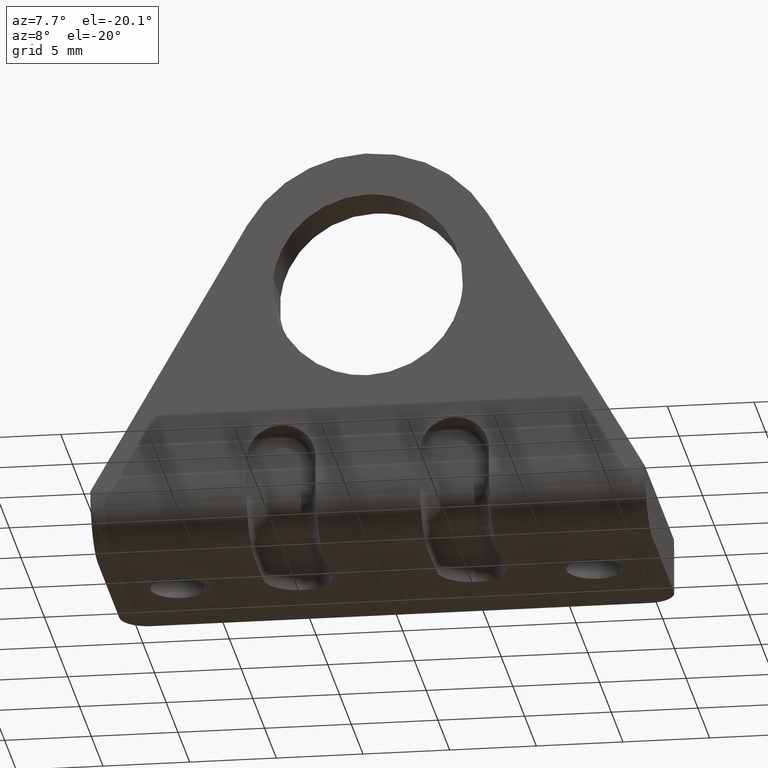
[diagram: clean part render]
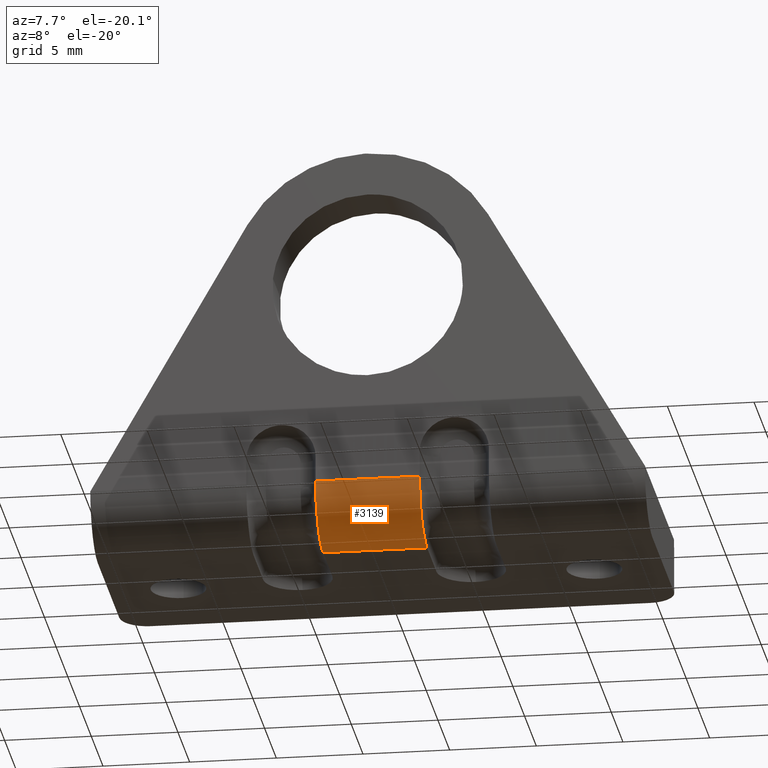
[diagram: same view with one face highlighted and labeled with its STEP entity id]
A machine part, auxiliary view. The second image highlights one B-rep face of the part: STEP entity #3139.
In plain terms, the highlighted face is a freeform B-spline surface patch.
Its self-contained STEP definition (entity closure, byte-faithful):
#969=CARTESIAN_POINT('',(-3.000000000000115,3.199999999999805,-1.154632E-014));
#970=VERTEX_POINT('',#969);
#1016=CARTESIAN_POINT('',(-3.0,0.0,3.200000000000000));
#1017=VERTEX_POINT('',#1016);
#1047=CARTESIAN_POINT('',(-3.0,0.0,3.200000000000000));
#1048=CARTESIAN_POINT('',(-3.000000000000115,-1.947227E-013,4.336809E-016));
#1049=CARTESIAN_POINT('',(-3.000000000000115,3.199999999999805,0.0));
#1057=(BOUNDED_CURVE()B_SPLINE_CURVE(2,(#1047,#1048,#1049),.UNSPECIFIED.,.F.,.U.)CURVE()GEOMETRIC_REPRESENTATION_ITEM()QUASI_UNIFORM_CURVE()RATIONAL_B_SPLINE_CURVE((1.0,0.707106781186548,1.0))REPRESENTATION_ITEM(''));
#1058=EDGE_CURVE('',#1017,#970,#1057,.T.);
#1597=CARTESIAN_POINT('',(3.0,0.0,3.200000000000000));
#1598=VERTEX_POINT('',#1597);
#1674=CARTESIAN_POINT('',(3.000000000000115,3.199999999999805,-1.154632E-014));
#1675=VERTEX_POINT('',#1674);
#1707=CARTESIAN_POINT('',(3.0,0.0,3.200000000000000));
#1708=CARTESIAN_POINT('',(3.000000000000115,-1.947227E-013,4.336809E-016));
#1709=CARTESIAN_POINT('',(3.000000000000115,3.199999999999805,-1.154632E-014));
#1717=(BOUNDED_CURVE()B_SPLINE_CURVE(2,(#1707,#1708,#1709),.UNSPECIFIED.,.F.,.U.)CURVE()GEOMETRIC_REPRESENTATION_ITEM()QUASI_UNIFORM_CURVE()RATIONAL_B_SPLINE_CURVE((1.0,0.707106781186548,1.0))REPRESENTATION_ITEM(''));
#1718=EDGE_CURVE('',#1598,#1675,#1717,.T.);
#2873=CARTESIAN_POINT('',(-3.0,0.0,3.200000000000000));
#2874=CARTESIAN_POINT('',(3.0,0.0,3.200000000000000));
#2875=QUASI_UNIFORM_CURVE('',1,(#2873,#2874),.UNSPECIFIED.,.F.,.U.);
#2876=EDGE_CURVE('',#1017,#1598,#2875,.T.);
#3007=CARTESIAN_POINT('',(3.000000000000115,3.199999999999805,-1.154632E-014));
#3008=CARTESIAN_POINT('',(-3.000000000000115,3.199999999999805,-1.154632E-014));
#3009=QUASI_UNIFORM_CURVE('',1,(#3007,#3008),.UNSPECIFIED.,.F.,.U.);
#3010=EDGE_CURVE('',#1675,#970,#3009,.T.);
#3119=CARTESIAN_POINT('',(3.150000000000121,0.001096560078218,3.283766234585199));
#3120=CARTESIAN_POINT('',(-3.153750000000120,0.001096560078218,3.283766234585199));
#3121=CARTESIAN_POINT('',(3.150000000000122,-0.088731728847536,-0.146637720777243));
#3122=CARTESIAN_POINT('',(-3.153750000000121,-0.088731728847536,-0.146637720777243));
#3123=CARTESIAN_POINT('',(3.150000000000121,3.339582039569072,0.003045690938056));
#3124=CARTESIAN_POINT('',(-3.153750000000120,3.339582039569072,0.003045690938056));
#3132=(BOUNDED_SURFACE()B_SPLINE_SURFACE(1,2,((#3119,#3121,#3123),(#3120,#3122,#3124)),.UNSPECIFIED.,.F.,.F.,.U.)B_SPLINE_SURFACE_WITH_KNOTS((2,2),(3,3),(0.0,6.303750000000242),(0.0,5.565598399499949),.UNSPECIFIED.)GEOMETRIC_REPRESENTATION_ITEM()RATIONAL_B_SPLINE_SURFACE(((1.0,0.681998360062498,1.0),(1.0,0.681998360062498,1.0)))REPRESENTATION_ITEM('')SURFACE());
#3133=ORIENTED_EDGE('',*,*,#2876,.F.);
#3134=ORIENTED_EDGE('',*,*,#1058,.T.);
#3135=ORIENTED_EDGE('',*,*,#3010,.F.);
#3136=ORIENTED_EDGE('',*,*,#1718,.F.);
#3137=EDGE_LOOP('',(#3133,#3134,#3135,#3136));
#3138=FACE_OUTER_BOUND('',#3137,.T.);
#3139=ADVANCED_FACE('',(#3138),#3132,.T.);